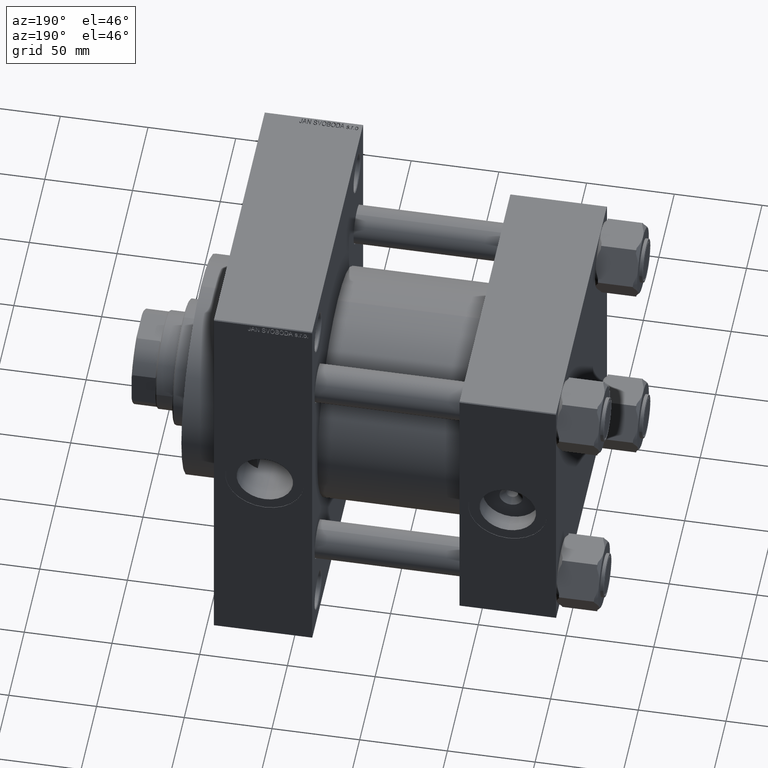
[diagram: clean part render]
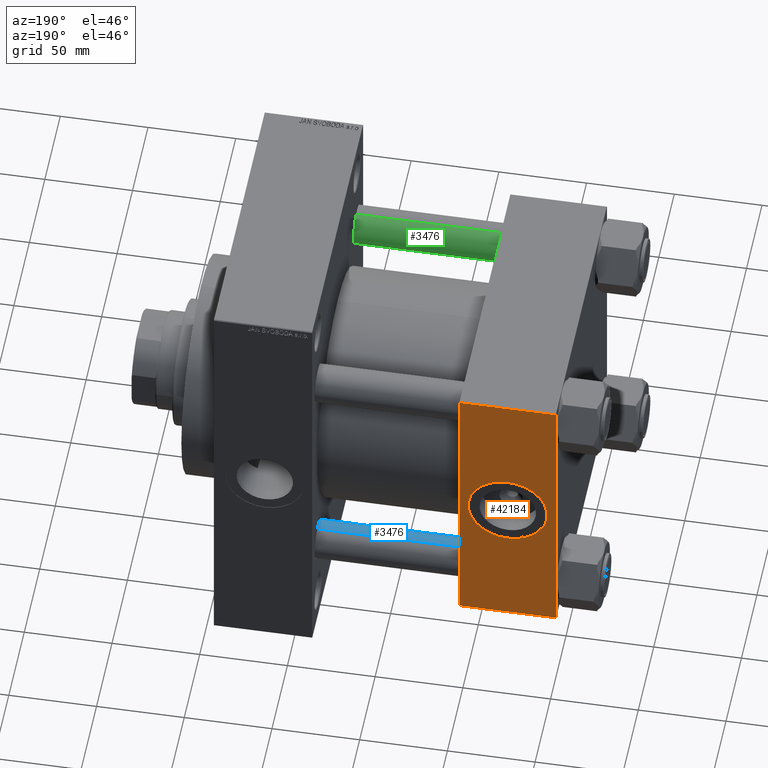
[diagram: same view with three faces highlighted in distinct colors, each labeled with its STEP entity id]
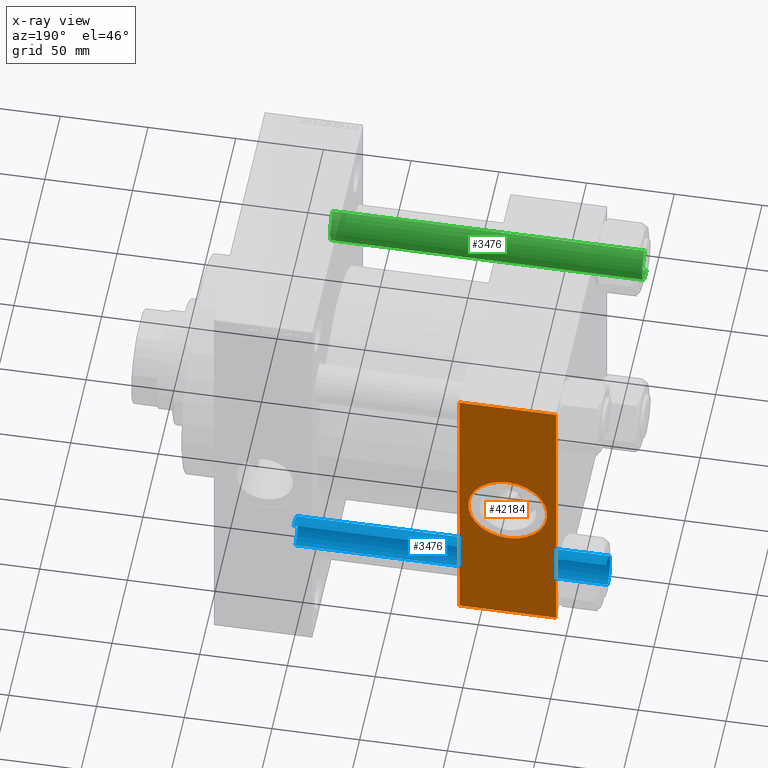
[diagram: x-ray of the same camera — body ghosted, the three highlighted faces saturated]
A machine part, auxiliary view with three faces highlighted in distinct colors.
The next image is the same camera in x-ray (body ghosted, the three faces saturated) — at least one of them is partly hidden behind the body in this view.
Their STEP definitions:

[orange] entity #42184 — the highlighted planar face has unit normal (0, 1, 0).
#613 = VERTEX_POINT ( 'NONE', #19712 ) ;
#1802 = AXIS2_PLACEMENT_3D ( 'NONE', #25139, #28146, #6132 ) ;
#3004 = LINE ( 'NONE', #37780, #13897 ) ;
#3523 = VERTEX_POINT ( 'NONE', #37214 ) ;
#5622 = DIRECTION ( 'NONE',  ( 1.000000000000000000, 0.000000000000000000, 0.000000000000000000 ) ) ;
#6132 = DIRECTION ( 'NONE',  ( 0.000000000000000000, -0.000000000000000000, 1.000000000000000000 ) ) ;
#7564 = DIRECTION ( 'NONE',  ( 0.000000000000000000, 0.000000000000000000, 1.000000000000000000 ) ) ;
#9826 = AXIS2_PLACEMENT_3D ( 'NONE', #15931, #27178, #18956 ) ;
#11227 = ORIENTED_EDGE ( 'NONE', *, *, #21256, .T. ) ;
#12887 = FACE_OUTER_BOUND ( 'NONE', #21654, .T. ) ;
#13628 = FACE_BOUND ( 'NONE', #23497, .T. ) ;
#13897 = VECTOR ( 'NONE', #33509, 1000.000000000000000 ) ;
#14620 = CIRCLE ( 'NONE', #9826, 22.50000000000000711 ) ;
#15466 = VECTOR ( 'NONE', #5622, 1000.000000000000000 ) ;
#15931 = CARTESIAN_POINT ( 'NONE',  ( 27.50000000000000000, 82.50000000000002842, 0.000000000000000000 ) ) ;
#17915 = LINE ( 'NONE', #37681, #24216 ) ;
#18585 = ORIENTED_EDGE ( 'NONE', *, *, #30565, .F. ) ;
#18594 = CARTESIAN_POINT ( 'NONE',  ( 55.00000000000000000, 82.50000000000002842, 82.50000000000002842 ) ) ;
#18956 = DIRECTION ( 'NONE',  ( 0.000000000000000000, 0.000000000000000000, 1.000000000000000000 ) ) ;
#19712 = CARTESIAN_POINT ( 'NONE',  ( 0.000000000000000000, 82.50000000000002842, -82.00000000000000000 ) ) ;
#20058 = EDGE_CURVE ( 'NONE', #26254, #43004, #29590, .T. ) ;
#20991 = EDGE_CURVE ( 'NONE', #3523, #613, #17915, .T. ) ;
#21256 = EDGE_CURVE ( 'NONE', #3523, #26254, #39158, .T. ) ;
#21654 = EDGE_LOOP ( 'NONE', ( #23852, #40986, #44947, #11227 ) ) ;
#22263 = AXIS2_PLACEMENT_3D ( 'NONE', #45602, #26568, #7564 ) ;
#23497 = EDGE_LOOP ( 'NONE', ( #35133, #18585 ) ) ;
#23852 = ORIENTED_EDGE ( 'NONE', *, *, #20058, .T. ) ;
#24216 = VECTOR ( 'NONE', #33172, 1000.000000000000000 ) ;
#25139 = CARTESIAN_POINT ( 'NONE',  ( 55.00000000000000000, 82.50000000000002842, 82.50000000000002842 ) ) ;
#26254 = VERTEX_POINT ( 'NONE', #42296 ) ;
#26568 = DIRECTION ( 'NONE',  ( 0.000000000000000000, 1.000000000000000000, 0.000000000000000000 ) ) ;
#27178 = DIRECTION ( 'NONE',  ( 0.000000000000000000, 1.000000000000000000, 0.000000000000000000 ) ) ;
#28146 = DIRECTION ( 'NONE',  ( -0.000000000000000000, 1.000000000000000000, 0.000000000000000000 ) ) ;
#28154 = CARTESIAN_POINT ( 'NONE',  ( 55.00000000000000000, 82.50000000000002842, -82.00000000000000000 ) ) ;
#28528 = CARTESIAN_POINT ( 'NONE',  ( 27.50000000000000355, 82.50000000000002842, -22.50000000000000711 ) ) ;
#28614 = VERTEX_POINT ( 'NONE', #39167 ) ;
#28884 = PLANE ( 'NONE',  #1802 ) ;
#29590 = LINE ( 'NONE', #18594, #32135 ) ;
#30565 = EDGE_CURVE ( 'NONE', #43548, #28614, #31048, .T. ) ;
#31048 = CIRCLE ( 'NONE', #22263, 22.50000000000000711 ) ;
#32135 = VECTOR ( 'NONE', #45873, 1000.000000000000000 ) ;
#33172 = DIRECTION ( 'NONE',  ( 0.000000000000000000, 0.000000000000000000, -1.000000000000000000 ) ) ;
#33509 = DIRECTION ( 'NONE',  ( -1.000000000000000000, 0.000000000000000000, 0.000000000000000000 ) ) ;
#35133 = ORIENTED_EDGE ( 'NONE', *, *, #43932, .F. ) ;
#37214 = CARTESIAN_POINT ( 'NONE',  ( 0.000000000000000000, 82.50000000000002842, 82.00000000000005684 ) ) ;
#37681 = CARTESIAN_POINT ( 'NONE',  ( 0.000000000000000000, 82.50000000000002842, 82.50000000000002842 ) ) ;
#37780 = CARTESIAN_POINT ( 'NONE',  ( 55.00000000000000000, 82.50000000000002842, -82.00000000000000000 ) ) ;
#39158 = LINE ( 'NONE', #39894, #15466 ) ;
#39167 = CARTESIAN_POINT ( 'NONE',  ( 27.50000000000000000, 82.50000000000002842, 22.50000000000000711 ) ) ;
#39894 = CARTESIAN_POINT ( 'NONE',  ( 55.00000000000000000, 82.50000000000002842, 82.00000000000005684 ) ) ;
#40986 = ORIENTED_EDGE ( 'NONE', *, *, #49455, .T. ) ;
#42184 = ADVANCED_FACE ( 'NONE', ( #13628, #12887 ), #28884, .T. ) ;
#42296 = CARTESIAN_POINT ( 'NONE',  ( 55.00000000000000000, 82.50000000000002842, 82.00000000000005684 ) ) ;
#43004 = VERTEX_POINT ( 'NONE', #28154 ) ;
#43548 = VERTEX_POINT ( 'NONE', #28528 ) ;
#43932 = EDGE_CURVE ( 'NONE', #28614, #43548, #14620, .T. ) ;
#44947 = ORIENTED_EDGE ( 'NONE', *, *, #20991, .F. ) ;
#45602 = CARTESIAN_POINT ( 'NONE',  ( 27.50000000000000000, 82.50000000000002842, 0.000000000000000000 ) ) ;
#45873 = DIRECTION ( 'NONE',  ( 0.000000000000000000, 0.000000000000000000, -1.000000000000000000 ) ) ;
#49455 = EDGE_CURVE ( 'NONE', #43004, #613, #3004, .T. ) ;

[blue] entity #3476 — the highlighted cylindrical surface (edge-blend (fillet) strip) has radius 11 mm, axis along (1, -0, 0).
#800 = EDGE_CURVE ( 'NONE', #41710, #46269, #33056, .T. ) ;
#2195 = AXIS2_PLACEMENT_3D ( 'NONE', #2934, #25441, #21211 ) ;
#2934 = CARTESIAN_POINT ( 'NONE',  ( 0.000000000000000000, 0.000000000000000000, 179.0000000000000000 ) ) ;
#3476 = ADVANCED_FACE ( 'NONE', ( #14183 ), #29189, .T. ) ;
#4562 = CARTESIAN_POINT ( 'NONE',  ( 11.00000000000000000, 1.347111479062088207E-15, 179.0000000000000000 ) ) ;
#5215 = VECTOR ( 'NONE', #9927, 1000.000000000000000 ) ;
#6128 = ORIENTED_EDGE ( 'NONE', *, *, #800, .T. ) ;
#6692 = CARTESIAN_POINT ( 'NONE',  ( 11.00000000000000000, 1.347111479062088207E-15, 0.5000000000001392220 ) ) ;
#9927 = DIRECTION ( 'NONE',  ( -0.000000000000000000, -0.000000000000000000, -1.000000000000000000 ) ) ;
#10452 = DIRECTION ( 'NONE',  ( 1.000000000000000000, 0.000000000000000000, 0.000000000000000000 ) ) ;
#11489 = AXIS2_PLACEMENT_3D ( 'NONE', #11639, #49435, #18914 ) ;
#11639 = CARTESIAN_POINT ( 'NONE',  ( 0.000000000000000000, 0.000000000000000000, 0.5000000000001392220 ) ) ;
#11946 = CARTESIAN_POINT ( 'NONE',  ( 11.00000000000000000, 1.347111479062088207E-15, 178.5000000000000853 ) ) ;
#14183 = FACE_OUTER_BOUND ( 'NONE', #18951, .T. ) ;
#14832 = EDGE_CURVE ( 'NONE', #16830, #36721, #18534, .T. ) ;
#15823 = ORIENTED_EDGE ( 'NONE', *, *, #44192, .F. ) ;
#16830 = VERTEX_POINT ( 'NONE', #11946 ) ;
#17433 = LINE ( 'NONE', #47967, #5215 ) ;
#18422 = AXIS2_PLACEMENT_3D ( 'NONE', #19091, #28731, #10452 ) ;
#18534 = CIRCLE ( 'NONE', #18422, 11.00000000000000000 ) ;
#18914 = DIRECTION ( 'NONE',  ( 1.000000000000000000, 0.000000000000000000, 0.000000000000000000 ) ) ;
#18951 = EDGE_LOOP ( 'NONE', ( #15823, #28752, #24125, #6128 ) ) ;
#19091 = CARTESIAN_POINT ( 'NONE',  ( 0.000000000000000000, 0.000000000000000000, 178.5000000000000853 ) ) ;
#21211 = DIRECTION ( 'NONE',  ( -1.000000000000000000, 0.000000000000000000, 0.000000000000000000 ) ) ;
#24125 = ORIENTED_EDGE ( 'NONE', *, *, #28541, .T. ) ;
#25441 = DIRECTION ( 'NONE',  ( -0.000000000000000000, -0.000000000000000000, -1.000000000000000000 ) ) ;
#28541 = EDGE_CURVE ( 'NONE', #36721, #41710, #17433, .T. ) ;
#28731 = DIRECTION ( 'NONE',  ( 0.000000000000000000, 0.000000000000000000, -1.000000000000000000 ) ) ;
#28752 = ORIENTED_EDGE ( 'NONE', *, *, #14832, .T. ) ;
#29189 = CYLINDRICAL_SURFACE ( 'NONE', #2195, 11.00000000000000000 ) ;
#30821 = DIRECTION ( 'NONE',  ( -0.000000000000000000, -0.000000000000000000, -1.000000000000000000 ) ) ;
#31060 = LINE ( 'NONE', #4562, #41803 ) ;
#33056 = CIRCLE ( 'NONE', #11489, 11.00000000000000000 ) ;
#36721 = VERTEX_POINT ( 'NONE', #43619 ) ;
#38983 = CARTESIAN_POINT ( 'NONE',  ( -11.00000000000000000, 0.000000000000000000, 0.5000000000001392220 ) ) ;
#41710 = VERTEX_POINT ( 'NONE', #38983 ) ;
#41803 = VECTOR ( 'NONE', #30821, 1000.000000000000000 ) ;
#43619 = CARTESIAN_POINT ( 'NONE',  ( -11.00000000000000000, 0.000000000000000000, 178.5000000000000853 ) ) ;
#44192 = EDGE_CURVE ( 'NONE', #16830, #46269, #31060, .T. ) ;
#46269 = VERTEX_POINT ( 'NONE', #6692 ) ;
#47967 = CARTESIAN_POINT ( 'NONE',  ( -11.00000000000000000, 0.000000000000000000, 179.0000000000000000 ) ) ;
#49435 = DIRECTION ( 'NONE',  ( -0.000000000000000000, -0.000000000000000000, 1.000000000000000000 ) ) ;

[green] entity #3476 — the highlighted cylindrical surface (edge-blend (fillet) strip) has radius 11 mm, axis along (1, 0, 0).
#800 = EDGE_CURVE ( 'NONE', #41710, #46269, #33056, .T. ) ;
#2195 = AXIS2_PLACEMENT_3D ( 'NONE', #2934, #25441, #21211 ) ;
#2934 = CARTESIAN_POINT ( 'NONE',  ( 0.000000000000000000, 0.000000000000000000, 179.0000000000000000 ) ) ;
#3476 = ADVANCED_FACE ( 'NONE', ( #14183 ), #29189, .T. ) ;
#4562 = CARTESIAN_POINT ( 'NONE',  ( 11.00000000000000000, 1.347111479062088207E-15, 179.0000000000000000 ) ) ;
#5215 = VECTOR ( 'NONE', #9927, 1000.000000000000000 ) ;
#6128 = ORIENTED_EDGE ( 'NONE', *, *, #800, .T. ) ;
#6692 = CARTESIAN_POINT ( 'NONE',  ( 11.00000000000000000, 1.347111479062088207E-15, 0.5000000000001392220 ) ) ;
#9927 = DIRECTION ( 'NONE',  ( -0.000000000000000000, -0.000000000000000000, -1.000000000000000000 ) ) ;
#10452 = DIRECTION ( 'NONE',  ( 1.000000000000000000, 0.000000000000000000, 0.000000000000000000 ) ) ;
#11489 = AXIS2_PLACEMENT_3D ( 'NONE', #11639, #49435, #18914 ) ;
#11639 = CARTESIAN_POINT ( 'NONE',  ( 0.000000000000000000, 0.000000000000000000, 0.5000000000001392220 ) ) ;
#11946 = CARTESIAN_POINT ( 'NONE',  ( 11.00000000000000000, 1.347111479062088207E-15, 178.5000000000000853 ) ) ;
#14183 = FACE_OUTER_BOUND ( 'NONE', #18951, .T. ) ;
#14832 = EDGE_CURVE ( 'NONE', #16830, #36721, #18534, .T. ) ;
#15823 = ORIENTED_EDGE ( 'NONE', *, *, #44192, .F. ) ;
#16830 = VERTEX_POINT ( 'NONE', #11946 ) ;
#17433 = LINE ( 'NONE', #47967, #5215 ) ;
#18422 = AXIS2_PLACEMENT_3D ( 'NONE', #19091, #28731, #10452 ) ;
#18534 = CIRCLE ( 'NONE', #18422, 11.00000000000000000 ) ;
#18914 = DIRECTION ( 'NONE',  ( 1.000000000000000000, 0.000000000000000000, 0.000000000000000000 ) ) ;
#18951 = EDGE_LOOP ( 'NONE', ( #15823, #28752, #24125, #6128 ) ) ;
#19091 = CARTESIAN_POINT ( 'NONE',  ( 0.000000000000000000, 0.000000000000000000, 178.5000000000000853 ) ) ;
#21211 = DIRECTION ( 'NONE',  ( -1.000000000000000000, 0.000000000000000000, 0.000000000000000000 ) ) ;
#24125 = ORIENTED_EDGE ( 'NONE', *, *, #28541, .T. ) ;
#25441 = DIRECTION ( 'NONE',  ( -0.000000000000000000, -0.000000000000000000, -1.000000000000000000 ) ) ;
#28541 = EDGE_CURVE ( 'NONE', #36721, #41710, #17433, .T. ) ;
#28731 = DIRECTION ( 'NONE',  ( 0.000000000000000000, 0.000000000000000000, -1.000000000000000000 ) ) ;
#28752 = ORIENTED_EDGE ( 'NONE', *, *, #14832, .T. ) ;
#29189 = CYLINDRICAL_SURFACE ( 'NONE', #2195, 11.00000000000000000 ) ;
#30821 = DIRECTION ( 'NONE',  ( -0.000000000000000000, -0.000000000000000000, -1.000000000000000000 ) ) ;
#31060 = LINE ( 'NONE', #4562, #41803 ) ;
#33056 = CIRCLE ( 'NONE', #11489, 11.00000000000000000 ) ;
#36721 = VERTEX_POINT ( 'NONE', #43619 ) ;
#38983 = CARTESIAN_POINT ( 'NONE',  ( -11.00000000000000000, 0.000000000000000000, 0.5000000000001392220 ) ) ;
#41710 = VERTEX_POINT ( 'NONE', #38983 ) ;
#41803 = VECTOR ( 'NONE', #30821, 1000.000000000000000 ) ;
#43619 = CARTESIAN_POINT ( 'NONE',  ( -11.00000000000000000, 0.000000000000000000, 178.5000000000000853 ) ) ;
#44192 = EDGE_CURVE ( 'NONE', #16830, #46269, #31060, .T. ) ;
#46269 = VERTEX_POINT ( 'NONE', #6692 ) ;
#47967 = CARTESIAN_POINT ( 'NONE',  ( -11.00000000000000000, 0.000000000000000000, 179.0000000000000000 ) ) ;
#49435 = DIRECTION ( 'NONE',  ( -0.000000000000000000, -0.000000000000000000, 1.000000000000000000 ) ) ;